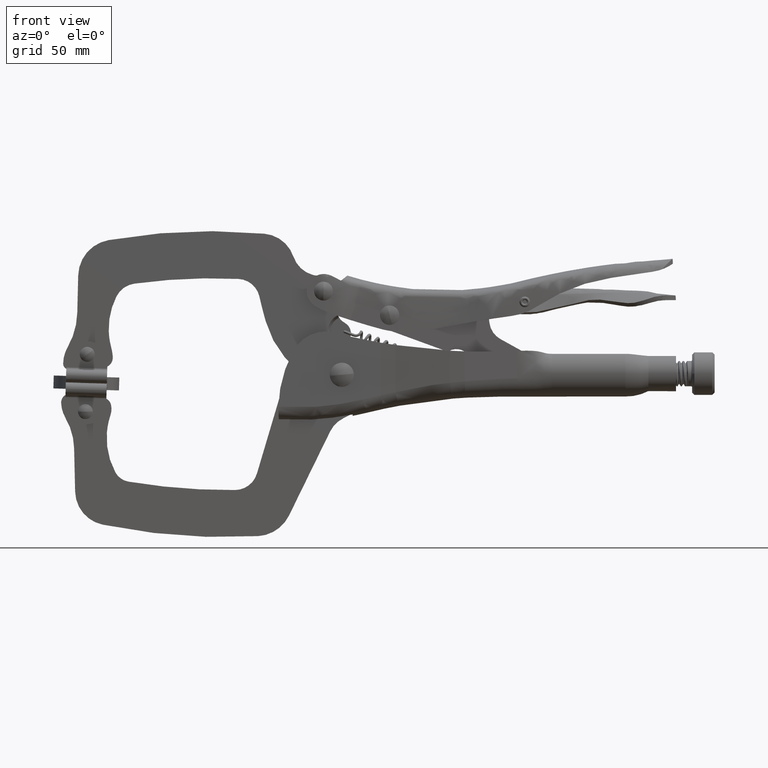
[diagram: clean part render]
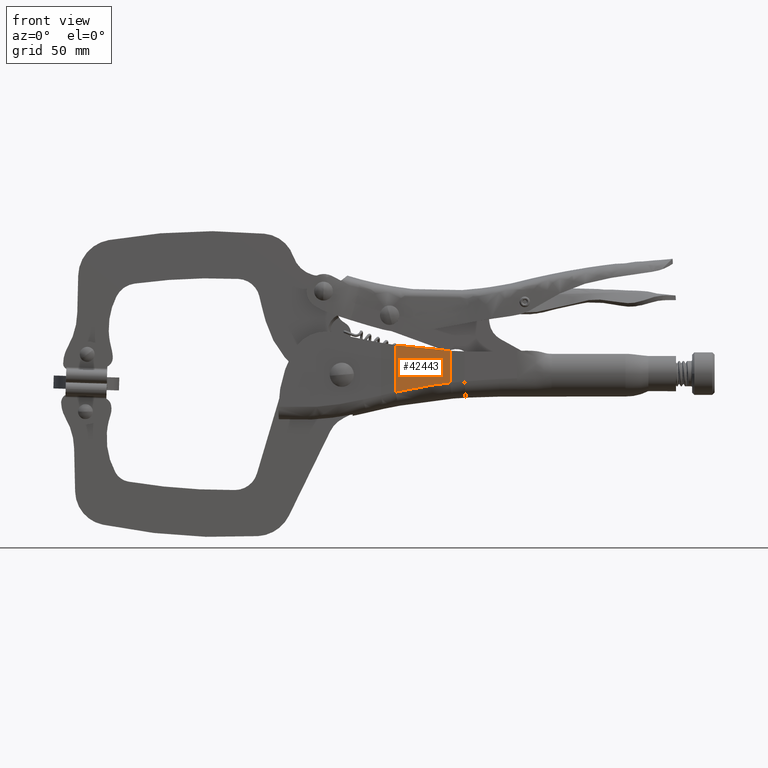
[diagram: same view with one face highlighted and labeled with its STEP entity id]
A machine part, front view. The second image highlights one B-rep face of the part: STEP entity #42443.
In plain terms, the highlighted planar face has unit normal (-0.1044, -0.9945, 0).
Its self-contained STEP definition (entity closure, byte-faithful):
#144 = ORIENTED_EDGE ( 'NONE', *, *, #14677, .T. ) ;
#1393 = CARTESIAN_POINT ( 'NONE',  ( -8.093329145196676700, -7.020164515018195500, 31.04612028979771700 ) ) ;
#5227 = DIRECTION ( 'NONE',  ( 0.0000000000000000000, 0.0000000000000000000, -1.000000000000000000 ) ) ;
#5242 = CARTESIAN_POINT ( 'NONE',  ( -31.84494823630416200, -4.526244510451934200, 31.04612028979771700 ) ) ;
#6136 = DIRECTION ( 'NONE',  ( 0.0000000000000000000, 0.0000000000000000000, -1.000000000000000000 ) ) ;
#6619 = CARTESIAN_POINT ( 'NONE',  ( -31.84494823480395100, -4.526244497391475700, -6.507345649152928700 ) ) ;
#7999 = EDGE_CURVE ( 'NONE', #41270, #54550, #31677, .T. ) ;
#11594 = PLANE ( 'NONE',  #56732 ) ;
#12391 = CARTESIAN_POINT ( 'NONE',  ( -8.093329145196650000, -7.020164515018199000, -2.411211285180949300 ) ) ;
#12403 = CARTESIAN_POINT ( 'NONE',  ( -9.960166490802963700, -6.824146593729543600, -2.567755184385113900 ) ) ;
#12454 = CARTESIAN_POINT ( 'NONE',  ( -11.95742773225888600, -6.614434163376668800, -2.807886738161725800 ) ) ;
#12745 = CARTESIAN_POINT ( 'NONE',  ( -14.09342413963202600, -6.390154540602488900, -3.132870474668389100 ) ) ;
#12824 = CARTESIAN_POINT ( 'NONE',  ( -14.09874930004458400, -6.389595398759171400, -3.133681353731782200 ) ) ;
#12838 = CARTESIAN_POINT ( 'NONE',  ( -14.11239652967915400, -6.388162439647542700, -3.135760432430423400 ) ) ;
#12893 = CARTESIAN_POINT ( 'NONE',  ( -14.13287817328539500, -6.386011867068884100, -3.138882721956036500 ) ) ;
#12969 = CARTESIAN_POINT ( 'NONE',  ( -14.18074426911407900, -6.380985927006871200, -3.146193764525920600 ) ) ;
#13046 = CARTESIAN_POINT ( 'NONE',  ( -14.27677883709462700, -6.370902297368918900, -3.160918651039704000 ) ) ;
#13417 = ORIENTED_EDGE ( 'NONE', *, *, #7999, .T. ) ;
#14120 = CARTESIAN_POINT ( 'NONE',  ( -14.47005747834834500, -6.350608040037275100, -3.190779629563159400 ) ) ;
#14135 = CARTESIAN_POINT ( 'NONE',  ( -14.86145278202635500, -6.309511533151084700, -3.252146408593639100 ) ) ;
#14344 = CARTESIAN_POINT ( 'NONE',  ( -15.66359547406467100, -6.225286550487061800, -3.381459254588872200 ) ) ;
#14466 = CARTESIAN_POINT ( 'NONE',  ( -17.34528919687044600, -6.048708709592457200, -3.666402098316418700 ) ) ;
#14626 = CARTESIAN_POINT ( 'NONE',  ( -18.91944096852534300, -5.883422773568690400, -3.955753938775054700 ) ) ;
#14677 = EDGE_CURVE ( 'NONE', #63808, #41270, #20971, .T. ) ;
#15121 = CARTESIAN_POINT ( 'NONE',  ( -16.04484866854107800, -6.185254965067039200, 11.95820016597096600 ) ) ;
#15171 = CARTESIAN_POINT ( 'NONE',  ( -20.03001813261707700, -5.766812171339059200, -4.169122251612846800 ) ) ;
#15305 = CARTESIAN_POINT ( 'NONE',  ( -20.02992929707543000, -5.766821499070932300, -4.169105198858509300 ) ) ;
#16169 = CARTESIAN_POINT ( 'NONE',  ( -20.03200792894817500, -5.766603242724292100, -4.169504612199971500 ) ) ;
#16558 = CARTESIAN_POINT ( 'NONE',  ( -20.03512847640540800, -5.766275585241284100, -4.170104275670869500 ) ) ;
#16759 = CARTESIAN_POINT ( 'NONE',  ( -20.04242795134248900, -5.765509140372890000, -4.171507294647055300 ) ) ;
#17327 = CARTESIAN_POINT ( 'NONE',  ( -20.05709969136413000, -5.763968607670618000, -4.174328549442716300 ) ) ;
#17679 = CARTESIAN_POINT ( 'NONE',  ( -20.08673433199725600, -5.760856970404137900, -4.180031926406987200 ) ) ;
#18267 = CARTESIAN_POINT ( 'NONE',  ( -20.14716825562298700, -5.754511408423437200, -4.191682149827443900 ) ) ;
#18745 = CARTESIAN_POINT ( 'NONE',  ( -8.093329145196664200, -7.020164515018199000, 11.49486590567879900 ) ) ;
#19905 = CARTESIAN_POINT ( 'NONE',  ( -20.27269467231226900, -5.741331134671064300, -4.215956474635991200 ) ) ;
#20971 = LINE ( 'NONE', #5242, #32599 ) ;
#21245 = CARTESIAN_POINT ( 'NONE',  ( -20.54238178344216000, -5.713013988002424000, -4.268400636123663700 ) ) ;
#21809 = CARTESIAN_POINT ( 'NONE',  ( -21.15629311670729300, -5.648553298009588300, -4.388871006581158700 ) ) ;
#21874 = ORIENTED_EDGE ( 'NONE', *, *, #61710, .F. ) ;
#22128 = CARTESIAN_POINT ( 'NONE',  ( -22.68226422725889400, -5.488326331401665900, -4.692139937424913800 ) ) ;
#22336 = CARTESIAN_POINT ( 'NONE',  ( -24.50135108319688000, -5.297322211528178400, -5.058933060883113300 ) ) ;
#22461 = CARTESIAN_POINT ( 'NONE',  ( -25.95248547690373900, -5.144953100188958600, -5.353231336544732600 ) ) ;
#22748 = CARTESIAN_POINT ( 'NONE',  ( -25.96027381711624200, -5.144135324466645000, -5.354810647978816000 ) ) ;
#22763 = CARTESIAN_POINT ( 'NONE',  ( -25.97928975512230600, -5.142138650976009200, -5.358666355604386300 ) ) ;
#23031 = CARTESIAN_POINT ( 'NONE',  ( -26.00779215609776800, -5.139145898873588100, -5.364444931252343500 ) ) ;
#23405 = CARTESIAN_POINT ( 'NONE',  ( -26.07414721613835300, -5.132178617569321600, -5.377893373898183800 ) ) ;
#23597 = CARTESIAN_POINT ( 'NONE',  ( -26.20625516727777100, -5.118307282699688300, -5.404650657058945200 ) ) ;
#23822 = CARTESIAN_POINT ( 'NONE',  ( -26.46806239378944900, -5.090817523915957200, -5.457606814856769800 ) ) ;
#24313 = CARTESIAN_POINT ( 'NONE',  ( -26.98204214374421300, -5.036849650170705000, -5.561285496357625000 ) ) ;
#24578 = CARTESIAN_POINT ( 'NONE',  ( -27.97146283137941200, -4.932960477969011500, -5.759708322980233500 ) ) ;
#24656 = CARTESIAN_POINT ( 'NONE',  ( -31.84494823480395100, -4.526244497391475700, -6.507345649152928700 ) ) ;
#25032 = CARTESIAN_POINT ( 'NONE',  ( -23.96741843353208900, -5.353385139742982800, 12.77931507007213000 ) ) ;
#26501 = DIRECTION ( 'NONE',  ( 0.9945326667047194000, -0.1044259300039956200, 0.0000000000000000000 ) ) ;
#26671 =( BOUNDED_CURVE ( )  B_SPLINE_CURVE ( 3, ( #49596, #15121, #25032, #59476 ),
 .UNSPECIFIED., .F., .T. ) 
 B_SPLINE_CURVE_WITH_KNOTS ( ( 4, 4 ),
 ( 4.770593066512054400, 4.860732430768023500 ),
 .UNSPECIFIED. ) 
 CURVE ( )  GEOMETRIC_REPRESENTATION_ITEM ( )  RATIONAL_B_SPLINE_CURVE ( ( 1.000000000000000000, 0.9993230225232894200, 0.9993230225232894200, 1.000000000000000000 ) ) 
 REPRESENTATION_ITEM ( '' )  );
#28068 = CARTESIAN_POINT ( 'NONE',  ( -31.09589949581941700, -4.604894628202811400, -6.369071159305148600 ) ) ;
#30469 = CARTESIAN_POINT ( 'NONE',  ( -29.79614895755240400, -4.741368434720847300, -6.120815830708899300 ) ) ;
#31677 = B_SPLINE_CURVE_WITH_KNOTS ( 'NONE', 3,
 ( #24656, #28068, #30469, #24578, #24313, #23822, #23597, #23405, #23031, #22763, #22748, #22461, #22336, #22128, #21809, #21245, #19905, #18267, #17679, #17327, #16759, #16558, #16169, #15305, #15171, #14626, #14466, #14344, #14135, #14120, #13046, #12969, #12893, #12838, #12824, #12745, #12454, #12403, #12391 ),
 .UNSPECIFIED., .F., .F.,
 ( 4, 1, 1, 1, 1, 1, 1, 1, 2, 2, 1, 1, 1, 1, 1, 1, 1, 1, 1, 2, 2, 1, 1, 1, 1, 1, 1, 1, 2, 2, 4 ),
 ( 0.0000000000000000000, 0.1250000000000125700, 0.1875000000000188700, 0.2187500000000220100, 0.2343750000000235600, 0.2421875000000242000, 0.2460937500000243100, 0.2480468750000245600, 0.2490234375000246700, 0.2500000000000248100, 0.3750000000000482900, 0.4375000000000600100, 0.4687500000000661700, 0.4843750000000696100, 0.4921875000000712800, 0.4960937500000717200, 0.4980468750000722800, 0.4990234375000730000, 0.4995117187500737700, 0.4997558593750741600, 0.5000000000000745000, 0.6250000000000743800, 0.6875000000000743800, 0.7187500000000742700, 0.7343750000000741600, 0.7421875000000739400, 0.7460937500000738300, 0.7480468750000737200, 0.7490234375000735000, 0.7500000000000731600, 1.000000000000000000 ),
 .UNSPECIFIED. ) ;
#32599 = VECTOR ( 'NONE', #5227, 1000.000000000000000 ) ;
#33193 = CARTESIAN_POINT ( 'NONE',  ( -8.093329145196650000, -7.020164515018199000, -2.411211285180949300 ) ) ;
#35296 = CARTESIAN_POINT ( 'NONE',  ( -31.84494823630414100, -4.526244510451928000, 13.95654298909470400 ) ) ;
#36219 = CARTESIAN_POINT ( 'NONE',  ( -31.84494823630415500, -4.526244510451913800, 31.04612028979771700 ) ) ;
#39495 = FACE_OUTER_BOUND ( 'NONE', #54388, .T. ) ;
#41270 = VERTEX_POINT ( 'NONE', #6619 ) ;
#42443 = ADVANCED_FACE ( 'NONE', ( #39495 ), #11594, .T. ) ;
#49596 = CARTESIAN_POINT ( 'NONE',  ( -8.093329145196664200, -7.020164515018199000, 11.49486590567879900 ) ) ;
#49633 = ORIENTED_EDGE ( 'NONE', *, *, #51489, .T. ) ;
#49840 = VERTEX_POINT ( 'NONE', #18745 ) ;
#49912 = LINE ( 'NONE', #1393, #62985 ) ;
#51489 = EDGE_CURVE ( 'NONE', #49840, #63808, #26671, .T. ) ;
#54388 = EDGE_LOOP ( 'NONE', ( #21874, #49633, #144, #13417 ) ) ;
#54550 = VERTEX_POINT ( 'NONE', #33193 ) ;
#55999 = DIRECTION ( 'NONE',  ( -0.1044259300039956400, -0.9945326667047195100, 0.0000000000000000000 ) ) ;
#56732 = AXIS2_PLACEMENT_3D ( 'NONE', #36219, #55999, #26501 ) ;
#59476 = CARTESIAN_POINT ( 'NONE',  ( -31.84494823630414100, -4.526244510451928000, 13.95654298909470400 ) ) ;
#61710 = EDGE_CURVE ( 'NONE', #49840, #54550, #49912, .T. ) ;
#62985 = VECTOR ( 'NONE', #6136, 1000.000000000000000 ) ;
#63808 = VERTEX_POINT ( 'NONE', #35296 ) ;